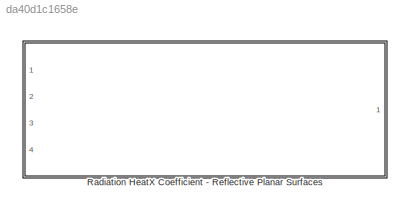
MODEL slx_da40d1c1658e
KIND library
CONFIG AbsTol = auto
CONFIG FixedStep = auto
CONFIG MaxStep = auto
CONFIG MinStep = auto
CONFIG RelTol = 1e-3
CONFIG SampleTimeConstraint = Unconstrained
CONFIG Solver = ode45
CONFIG SolverMode = Auto
CONFIG SolverName = ode45
CONFIG StartTime = 0.0
CONFIG StopTime = 10.0
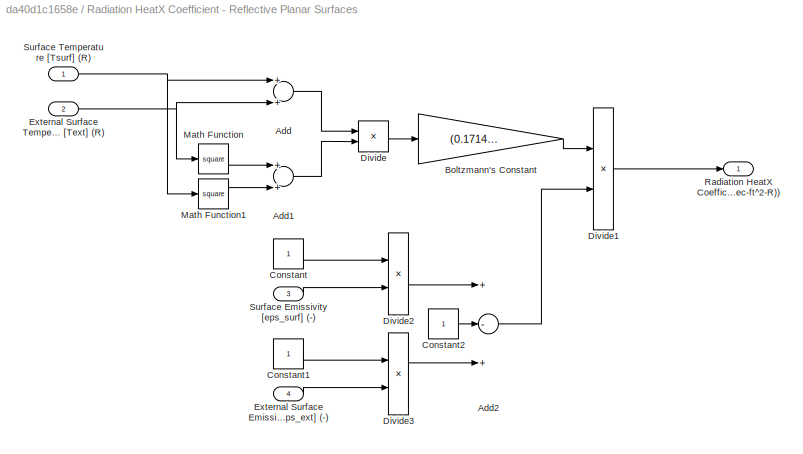
BLOCK [SubSystem] Radiation HeatX Coefficient - Reflective Planar Surfaces
  Ports = [4, 1]
  RequestExecContextInheritance = off
BLOCK [Sum] Radiation HeatX Coefficient - Reflective Planar Surfaces/Add
  InputSameDT = off
  OutDataTypeStr = Inherit: Inherit via internal rule
  Ports = [2, 1]
  SaturateOnIntegerOverflow = off
BLOCK [Sum] Radiation HeatX Coefficient - Reflective Planar Surfaces/Add1
  InputSameDT = off
  OutDataTypeStr = Inherit: Inherit via internal rule
  Ports = [2, 1]
  SaturateOnIntegerOverflow = off
BLOCK [Sum] Radiation HeatX Coefficient - Reflective Planar Surfaces/Add2
  InputSameDT = off
  Inputs = +-+
  OutDataTypeStr = Inherit: Inherit via internal rule
  Ports = [3, 1]
  SaturateOnIntegerOverflow = off
BLOCK [Gain] Radiation HeatX Coefficient - Reflective Planar Surfaces/Boltzmann's Constant
  Gain = (0.1714*10^-8)/3600
  OutDataTypeStr = Inherit: Inherit via internal rule
  ParamDataTypeStr = Inherit: Inherit via internal rule
  SaturateOnIntegerOverflow = off
BLOCK [Constant] Radiation HeatX Coefficient - Reflective Planar Surfaces/Constant
BLOCK [Constant] Radiation HeatX Coefficient - Reflective Planar Surfaces/Constant1
BLOCK [Constant] Radiation HeatX Coefficient - Reflective Planar Surfaces/Constant2
BLOCK [Product] Radiation HeatX Coefficient - Reflective Planar Surfaces/Divide
  InputSameDT = off
  Inputs = **
  OutDataTypeStr = Inherit: Inherit via internal rule
  Ports = [2, 1]
  RndMeth = Floor
  SaturateOnIntegerOverflow = off
BLOCK [Product] Radiation HeatX Coefficient - Reflective Planar Surfaces/Divide1
  InputSameDT = off
  Inputs = */
  OutDataTypeStr = Inherit: Inherit via internal rule
  Ports = [2, 1]
  RndMeth = Floor
  SaturateOnIntegerOverflow = off
BLOCK [Product] Radiation HeatX Coefficient - Reflective Planar Surfaces/Divide2
  InputSameDT = off
  Inputs = */
  OutDataTypeStr = Inherit: Inherit via internal rule
  Ports = [2, 1]
  RndMeth = Floor
  SaturateOnIntegerOverflow = off
BLOCK [Product] Radiation HeatX Coefficient - Reflective Planar Surfaces/Divide3
  InputSameDT = off
  Inputs = */
  OutDataTypeStr = Inherit: Inherit via internal rule
  Ports = [2, 1]
  RndMeth = Floor
  SaturateOnIntegerOverflow = off
BLOCK [Inport] Radiation HeatX Coefficient - Reflective Planar Surfaces/External Surface Emissivity [eps_ext] (-)
  IconDisplay = Port number
  Port = 4
BLOCK [Inport] Radiation HeatX Coefficient - Reflective Planar Surfaces/External Surface Temperature [Text] (R)
  IconDisplay = Port number
  Port = 2
BLOCK [Math] Radiation HeatX Coefficient - Reflective Planar Surfaces/Math Function
  Operator = square
  Ports = [1, 1]
BLOCK [Math] Radiation HeatX Coefficient - Reflective Planar Surfaces/Math Function1
  Operator = square
  Ports = [1, 1]
BLOCK [Outport] Radiation HeatX Coefficient - Reflective Planar Surfaces/Radiation HeatX Coefficient [u] (Btu//(sec-ft^2-R))
  IconDisplay = Port number
BLOCK [Inport] Radiation HeatX Coefficient - Reflective Planar Surfaces/Surface Emissivity [eps_surf] (-)
  IconDisplay = Port number
  Port = 3
BLOCK [Inport] Radiation HeatX Coefficient - Reflective Planar Surfaces/Surface Temperature [Tsurf] (R)
  IconDisplay = Port number
LINE Radiation HeatX Coefficient - Reflective Planar Surfaces/Add1:1 -> Radiation HeatX Coefficient - Reflective Planar Surfaces/Divide:2
LINE Radiation HeatX Coefficient - Reflective Planar Surfaces/Add2:1 -> Radiation HeatX Coefficient - Reflective Planar Surfaces/Divide1:2
LINE Radiation HeatX Coefficient - Reflective Planar Surfaces/Add:1 -> Radiation HeatX Coefficient - Reflective Planar Surfaces/Divide:1
LINE Radiation HeatX Coefficient - Reflective Planar Surfaces/Boltzmann's Constant:1 -> Radiation HeatX Coefficient - Reflective Planar Surfaces/Divide1:1
LINE Radiation HeatX Coefficient - Reflective Planar Surfaces/Constant1:1 -> Radiation HeatX Coefficient - Reflective Planar Surfaces/Divide3:1
LINE Radiation HeatX Coefficient - Reflective Planar Surfaces/Constant2:1 -> Radiation HeatX Coefficient - Reflective Planar Surfaces/Add2:2
LINE Radiation HeatX Coefficient - Reflective Planar Surfaces/Constant:1 -> Radiation HeatX Coefficient - Reflective Planar Surfaces/Divide2:1
LINE Radiation HeatX Coefficient - Reflective Planar Surfaces/Divide1:1 -> Radiation HeatX Coefficient - Reflective Planar Surfaces/Radiation HeatX Coefficient [u] (Btu//(sec-ft^2-R)):1
LINE Radiation HeatX Coefficient - Reflective Planar Surfaces/Divide2:1 -> Radiation HeatX Coefficient - Reflective Planar Surfaces/Add2:1
LINE Radiation HeatX Coefficient - Reflective Planar Surfaces/Divide3:1 -> Radiation HeatX Coefficient - Reflective Planar Surfaces/Add2:3
LINE Radiation HeatX Coefficient - Reflective Planar Surfaces/Divide:1 -> Radiation HeatX Coefficient - Reflective Planar Surfaces/Boltzmann's Constant:1
LINE Radiation HeatX Coefficient - Reflective Planar Surfaces/External Surface Emissivity [eps_ext] (-):1 -> Radiation HeatX Coefficient - Reflective Planar Surfaces/Divide3:2
NET Radiation HeatX Coefficient - Reflective Planar Surfaces/External Surface Temperature [Text] (R):1 -> Radiation HeatX Coefficient - Reflective Planar Surfaces/Add:2, Radiation HeatX Coefficient - Reflective Planar Surfaces/Math Function:1
LINE Radiation HeatX Coefficient - Reflective Planar Surfaces/Math Function1:1 -> Radiation HeatX Coefficient - Reflective Planar Surfaces/Add1:2
LINE Radiation HeatX Coefficient - Reflective Planar Surfaces/Math Function:1 -> Radiation HeatX Coefficient - Reflective Planar Surfaces/Add1:1
LINE Radiation HeatX Coefficient - Reflective Planar Surfaces/Surface Emissivity [eps_surf] (-):1 -> Radiation HeatX Coefficient - Reflective Planar Surfaces/Divide2:2
NET Radiation HeatX Coefficient - Reflective Planar Surfaces/Surface Temperature [Tsurf] (R):1 -> Radiation HeatX Coefficient - Reflective Planar Surfaces/Add:1, Radiation HeatX Coefficient - Reflective Planar Surfaces/Math Function1:1
note: NET lines group one-source signal fan-out (src -> all destinations, sorted); 1:1 wires keep LINE
